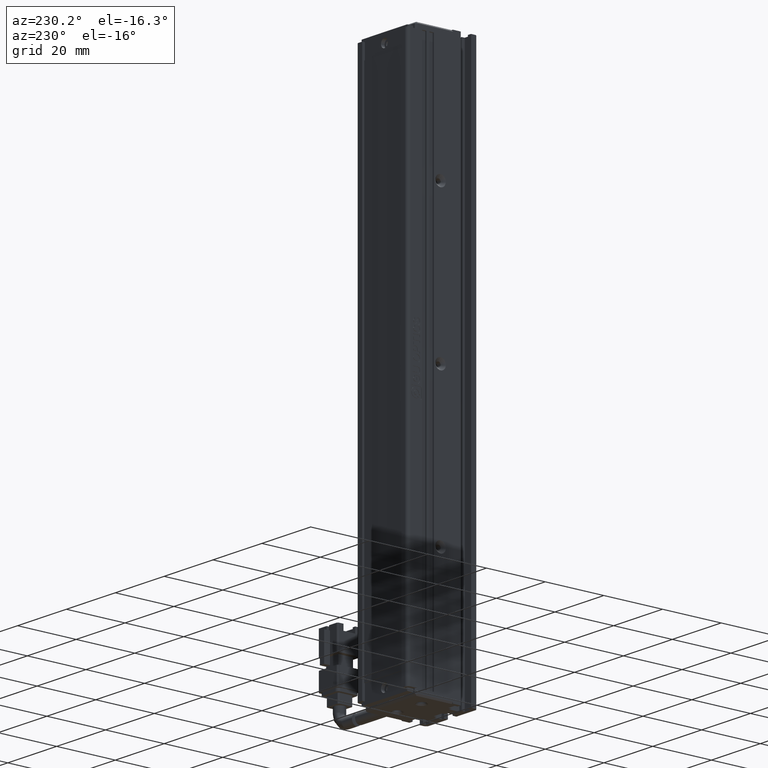
[diagram: clean part render]
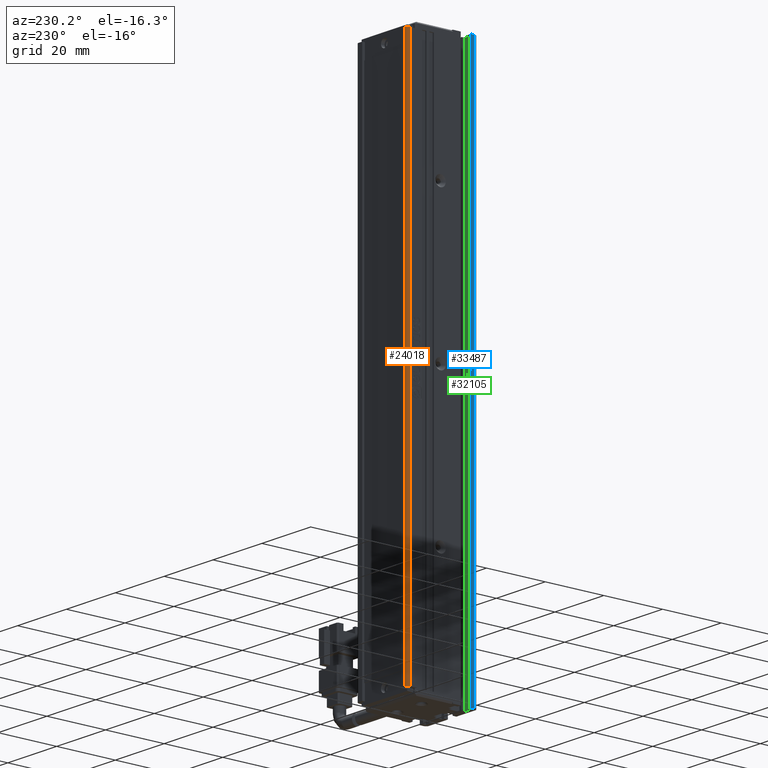
[diagram: same view with three faces highlighted in distinct colors, each labeled with its STEP entity id]
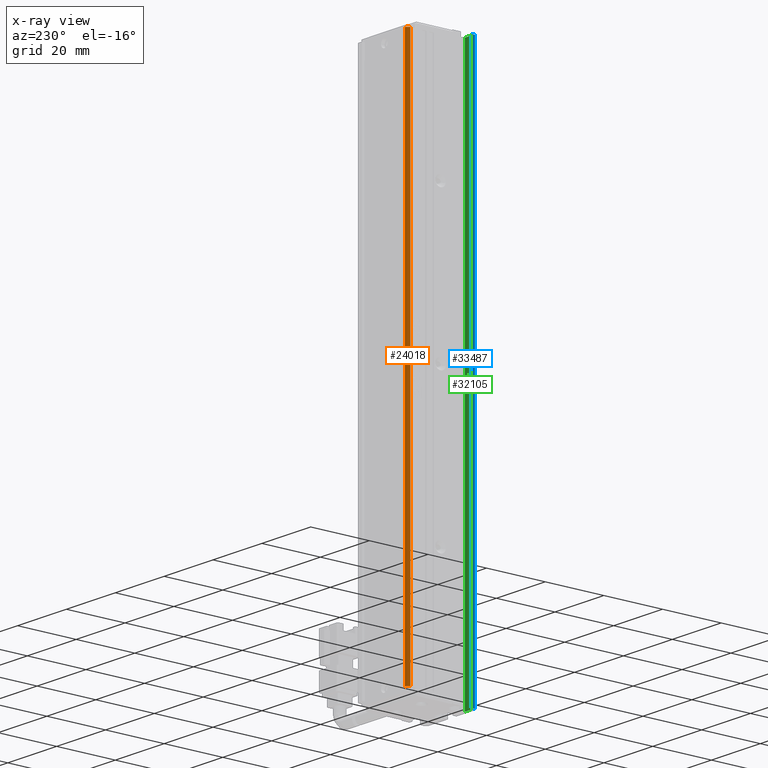
[diagram: x-ray of the same camera — body ghosted, the three highlighted faces saturated]
A machine part, auxiliary view with three faces highlighted in distinct colors.
The next image is the same camera in x-ray (body ghosted, the three faces saturated) — at least one of them is partly hidden behind the body in this view.
Their STEP definitions:

[orange] entity #24018 — the highlighted cylindrical surface (edge-blend (fillet) strip) has radius 1 mm, axis along (-0, -0, -1).
#329 = ORIENTED_EDGE ( 'NONE', *, *, #22657, .T. ) ;
#430 = AXIS2_PLACEMENT_3D ( 'NONE', #27837, #39596, #36041 ) ;
#1008 = CARTESIAN_POINT ( 'NONE',  ( 31.42537974683542100, 33.99073232304837000, -23.00000000000000700 ) ) ;
#1538 = CARTESIAN_POINT ( 'NONE',  ( 31.42537974683542100, 34.99073232304837700, -25.00000000000000700 ) ) ;
#1808 = DIRECTION ( 'NONE',  ( -0.0000000000000000000, -0.0000000000000000000, -1.000000000000000000 ) ) ;
#2430 = CARTESIAN_POINT ( 'NONE',  ( 31.42537974683542100, 34.99073232304837000, -23.00000000000000700 ) ) ;
#2836 = CARTESIAN_POINT ( 'NONE',  ( 31.42537974683542100, 34.99073232304837700, -205.0000000000000300 ) ) ;
#4057 = EDGE_CURVE ( 'NONE', #24825, #4283, #41988, .T. ) ;
#4283 = VERTEX_POINT ( 'NONE', #21234 ) ;
#9589 = EDGE_CURVE ( 'NONE', #40350, #4283, #31409, .T. ) ;
#9827 = VECTOR ( 'NONE', #17034, 1000.000000000000000 ) ;
#10618 = ORIENTED_EDGE ( 'NONE', *, *, #9589, .T. ) ;
#13259 = CARTESIAN_POINT ( 'NONE',  ( 30.42537974683542500, 33.99073232304837000, -23.00000000000000700 ) ) ;
#15354 = ORIENTED_EDGE ( 'NONE', *, *, #4057, .F. ) ;
#16053 = EDGE_CURVE ( 'NONE', #24825, #43625, #28518, .T. ) ;
#17034 = DIRECTION ( 'NONE',  ( -0.0000000000000000000, -0.0000000000000000000, -1.000000000000000000 ) ) ;
#17573 = CYLINDRICAL_SURFACE ( 'NONE', #35288, 1.000000000000000900 ) ;
#18389 = CARTESIAN_POINT ( 'NONE',  ( 30.42537974683542500, 33.99073232304837000, -25.00000000000000700 ) ) ;
#21061 = DIRECTION ( 'NONE',  ( -1.000000000000000000, 0.0000000000000000000, 0.0000000000000000000 ) ) ;
#21234 = CARTESIAN_POINT ( 'NONE',  ( 30.42537974683542500, 33.99073232304837000, -205.0000000000000300 ) ) ;
#22416 = AXIS2_PLACEMENT_3D ( 'NONE', #37912, #41316, #45554 ) ;
#22657 = EDGE_CURVE ( 'NONE', #43625, #40350, #44360, .T. ) ;
#24018 = ADVANCED_FACE ( 'NONE', ( #38634 ), #17573, .T. ) ;
#24825 = VERTEX_POINT ( 'NONE', #18389 ) ;
#25065 = VECTOR ( 'NONE', #1808, 1000.000000000000000 ) ;
#26378 = ORIENTED_EDGE ( 'NONE', *, *, #16053, .T. ) ;
#27837 = CARTESIAN_POINT ( 'NONE',  ( 31.42537974683542100, 33.99073232304837000, -25.00000000000000700 ) ) ;
#28518 = CIRCLE ( 'NONE', #430, 1.000000000000000900 ) ;
#28908 = DIRECTION ( 'NONE',  ( -0.0000000000000000000, -0.0000000000000000000, -1.000000000000000000 ) ) ;
#31409 = CIRCLE ( 'NONE', #22416, 1.000000000000000900 ) ;
#35269 = EDGE_LOOP ( 'NONE', ( #10618, #15354, #26378, #329 ) ) ;
#35288 = AXIS2_PLACEMENT_3D ( 'NONE', #1008, #28908, #21061 ) ;
#36041 = DIRECTION ( 'NONE',  ( -1.000000000000000000, 0.0000000000000000000, 0.0000000000000000000 ) ) ;
#37912 = CARTESIAN_POINT ( 'NONE',  ( 31.42537974683542100, 33.99073232304837000, -205.0000000000000300 ) ) ;
#38634 = FACE_OUTER_BOUND ( 'NONE', #35269, .T. ) ;
#39596 = DIRECTION ( 'NONE',  ( -0.0000000000000000000, -0.0000000000000000000, -1.000000000000000000 ) ) ;
#40350 = VERTEX_POINT ( 'NONE', #2836 ) ;
#41316 = DIRECTION ( 'NONE',  ( 0.0000000000000000000, 0.0000000000000000000, 1.000000000000000000 ) ) ;
#41988 = LINE ( 'NONE', #13259, #9827 ) ;
#43625 = VERTEX_POINT ( 'NONE', #1538 ) ;
#44360 = LINE ( 'NONE', #2430, #25065 ) ;
#45554 = DIRECTION ( 'NONE',  ( -1.000000000000000000, 0.0000000000000000000, 0.0000000000000000000 ) ) ;

[blue] entity #33487 — the highlighted planar face has unit normal (-1, -0, 0).
#2554 = ORIENTED_EDGE ( 'NONE', *, *, #36252, .T. ) ;
#3645 = CARTESIAN_POINT ( 'NONE',  ( 30.42537974683543200, 7.083797468354424300, -23.00000000000000700 ) ) ;
#4196 = EDGE_CURVE ( 'NONE', #17792, #35937, #26777, .T. ) ;
#5279 = ORIENTED_EDGE ( 'NONE', *, *, #4196, .T. ) ;
#6363 = DIRECTION ( 'NONE',  ( 1.334402673828310700E-015, -1.000000000000000000, 0.0000000000000000000 ) ) ;
#8475 = CARTESIAN_POINT ( 'NONE',  ( 30.42537974683542100, 13.29073232304837200, -207.0000000000000300 ) ) ;
#8762 = ORIENTED_EDGE ( 'NONE', *, *, #13399, .F. ) ;
#9953 = CARTESIAN_POINT ( 'NONE',  ( 30.42537974683543200, 7.083797468354424300, -207.0000000000000300 ) ) ;
#10297 = DIRECTION ( 'NONE',  ( -0.0000000000000000000, -0.0000000000000000000, -1.000000000000000000 ) ) ;
#10904 = VERTEX_POINT ( 'NONE', #31738 ) ;
#12157 = LINE ( 'NONE', #27751, #15103 ) ;
#13285 = VECTOR ( 'NONE', #6363, 1000.000000000000000 ) ;
#13399 = EDGE_CURVE ( 'NONE', #10904, #36693, #12157, .T. ) ;
#15103 = VECTOR ( 'NONE', #35797, 1000.000000000000000 ) ;
#16847 = VECTOR ( 'NONE', #10297, 1000.000000000000000 ) ;
#17792 = VERTEX_POINT ( 'NONE', #41346 ) ;
#18882 = LINE ( 'NONE', #3645, #21233 ) ;
#21233 = VECTOR ( 'NONE', #44706, 1000.000000000000000 ) ;
#26777 = LINE ( 'NONE', #28946, #16847 ) ;
#27290 = PLANE ( 'NONE',  #42113 ) ;
#27751 = CARTESIAN_POINT ( 'NONE',  ( 30.42537974683542500, 11.99073232304837000, -23.00000000000000700 ) ) ;
#28415 = DIRECTION ( 'NONE',  ( 1.334402673828310700E-015, -1.000000000000000000, 0.0000000000000000000 ) ) ;
#28673 = ORIENTED_EDGE ( 'NONE', *, *, #44944, .T. ) ;
#28946 = CARTESIAN_POINT ( 'NONE',  ( 30.42537974683542100, 13.29073232304837200, -23.00000000000000700 ) ) ;
#30992 = EDGE_LOOP ( 'NONE', ( #2554, #5279, #28673, #8762 ) ) ;
#31738 = CARTESIAN_POINT ( 'NONE',  ( 30.42537974683542500, 11.99073232304837000, -23.00000000000000700 ) ) ;
#31869 = DIRECTION ( 'NONE',  ( -1.000000000000000000, -1.334402673828310700E-015, 0.0000000000000000000 ) ) ;
#32110 = CARTESIAN_POINT ( 'NONE',  ( 30.42537974683542500, 11.99073232304837000, -207.0000000000000300 ) ) ;
#33183 = LINE ( 'NONE', #9953, #13285 ) ;
#33190 = FACE_OUTER_BOUND ( 'NONE', #30992, .T. ) ;
#33487 = ADVANCED_FACE ( 'NONE', ( #33190 ), #27290, .T. ) ;
#35797 = DIRECTION ( 'NONE',  ( -0.0000000000000000000, -0.0000000000000000000, -1.000000000000000000 ) ) ;
#35937 = VERTEX_POINT ( 'NONE', #8475 ) ;
#36252 = EDGE_CURVE ( 'NONE', #10904, #17792, #18882, .T. ) ;
#36693 = VERTEX_POINT ( 'NONE', #32110 ) ;
#41346 = CARTESIAN_POINT ( 'NONE',  ( 30.42537974683542100, 13.29073232304837200, -22.99999999999999300 ) ) ;
#42113 = AXIS2_PLACEMENT_3D ( 'NONE', #43271, #31869, #28415 ) ;
#43271 = CARTESIAN_POINT ( 'NONE',  ( 30.42537974683543200, 7.083797468354424300, -23.00000000000000700 ) ) ;
#44706 = DIRECTION ( 'NONE',  ( -1.334402673828310700E-015, 1.000000000000000000, -0.0000000000000000000 ) ) ;
#44944 = EDGE_CURVE ( 'NONE', #35937, #36693, #33183, .T. ) ;

[green] entity #32105 — the highlighted planar face has unit normal (0, -1, 0).
#125 = VECTOR ( 'NONE', #40114, 1000.000000000000000 ) ;
#1264 = CARTESIAN_POINT ( 'NONE',  ( 31.72537974683542600, 12.29073232304837200, -23.00000000000000700 ) ) ;
#5407 = DIRECTION ( 'NONE',  ( -0.0000000000000000000, 0.0000000000000000000, 1.000000000000000000 ) ) ;
#5662 = VERTEX_POINT ( 'NONE', #15438 ) ;
#5997 = ORIENTED_EDGE ( 'NONE', *, *, #20571, .F. ) ;
#6651 = PLANE ( 'NONE',  #24831 ) ;
#6969 = CARTESIAN_POINT ( 'NONE',  ( 40.92537974683542500, 12.29073232304837200, -23.00000000000000700 ) ) ;
#7365 = VERTEX_POINT ( 'NONE', #23620 ) ;
#10011 = VECTOR ( 'NONE', #35991, 1000.000000000000000 ) ;
#12654 = LINE ( 'NONE', #24488, #44212 ) ;
#15438 = CARTESIAN_POINT ( 'NONE',  ( 34.22537974683542900, 12.29073232304837200, -23.00000000000000700 ) ) ;
#16811 = DIRECTION ( 'NONE',  ( 0.0000000000000000000, -0.0000000000000000000, -1.000000000000000000 ) ) ;
#20155 = CARTESIAN_POINT ( 'NONE',  ( 34.22537974683542900, 12.29073232304837200, -23.00000000000000700 ) ) ;
#20571 = EDGE_CURVE ( 'NONE', #30528, #7365, #12654, .T. ) ;
#23620 = CARTESIAN_POINT ( 'NONE',  ( 31.72537974683542600, 12.29073232304837200, -207.0000000000000300 ) ) ;
#24394 = ORIENTED_EDGE ( 'NONE', *, *, #37214, .F. ) ;
#24488 = CARTESIAN_POINT ( 'NONE',  ( 31.72537974683542600, 12.29073232304837200, -23.00000000000000700 ) ) ;
#24831 = AXIS2_PLACEMENT_3D ( 'NONE', #6969, #47508, #32985 ) ;
#26800 = CARTESIAN_POINT ( 'NONE',  ( 34.22537974683542900, 12.29073232304837200, -207.0000000000000300 ) ) ;
#27783 = CARTESIAN_POINT ( 'NONE',  ( 40.92537974683542500, 12.29073232304837200, -23.00000000000000700 ) ) ;
#28124 = LINE ( 'NONE', #27783, #10011 ) ;
#28886 = CARTESIAN_POINT ( 'NONE',  ( 40.92537974683542500, 12.29073232304837200, -207.0000000000000300 ) ) ;
#30528 = VERTEX_POINT ( 'NONE', #1264 ) ;
#31588 = EDGE_LOOP ( 'NONE', ( #5997, #42502, #24394, #34847 ) ) ;
#32105 = ADVANCED_FACE ( 'NONE', ( #44780 ), #6651, .F. ) ;
#32107 = VECTOR ( 'NONE', #5407, 1000.000000000000000 ) ;
#32985 = DIRECTION ( 'NONE',  ( 0.0000000000000000000, -0.0000000000000000000, -1.000000000000000000 ) ) ;
#34847 = ORIENTED_EDGE ( 'NONE', *, *, #36198, .T. ) ;
#35483 = EDGE_CURVE ( 'NONE', #5662, #30528, #28124, .T. ) ;
#35991 = DIRECTION ( 'NONE',  ( -1.000000000000000000, -0.0000000000000000000, -0.0000000000000000000 ) ) ;
#36198 = EDGE_CURVE ( 'NONE', #41506, #7365, #39895, .T. ) ;
#37214 = EDGE_CURVE ( 'NONE', #41506, #5662, #47899, .T. ) ;
#39895 = LINE ( 'NONE', #28886, #125 ) ;
#40114 = DIRECTION ( 'NONE',  ( -1.000000000000000000, -0.0000000000000000000, -0.0000000000000000000 ) ) ;
#41506 = VERTEX_POINT ( 'NONE', #26800 ) ;
#42502 = ORIENTED_EDGE ( 'NONE', *, *, #35483, .F. ) ;
#44212 = VECTOR ( 'NONE', #16811, 1000.000000000000000 ) ;
#44780 = FACE_OUTER_BOUND ( 'NONE', #31588, .T. ) ;
#47508 = DIRECTION ( 'NONE',  ( 0.0000000000000000000, -1.000000000000000000, 0.0000000000000000000 ) ) ;
#47899 = LINE ( 'NONE', #20155, #32107 ) ;